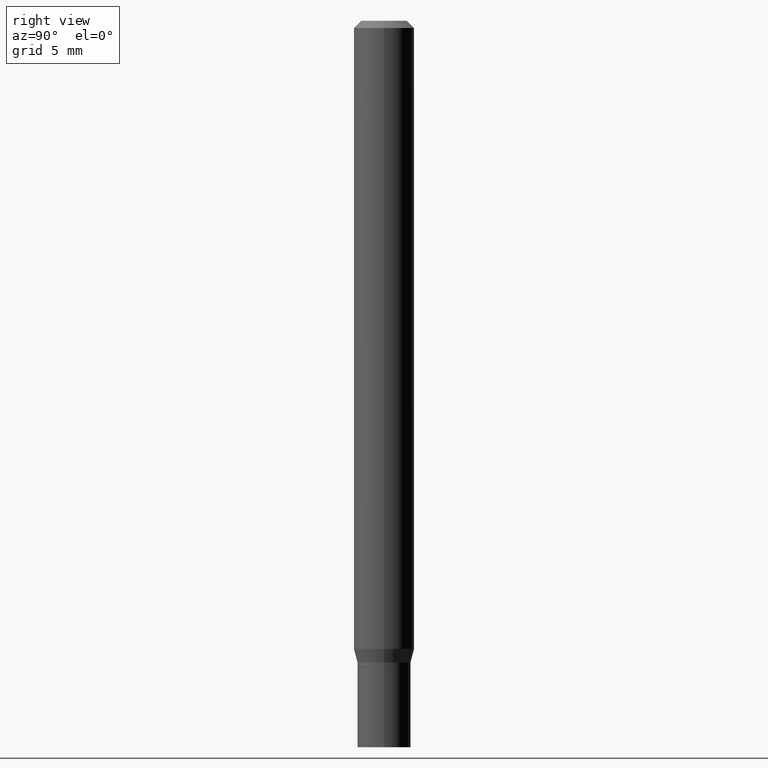
[diagram: clean part render]
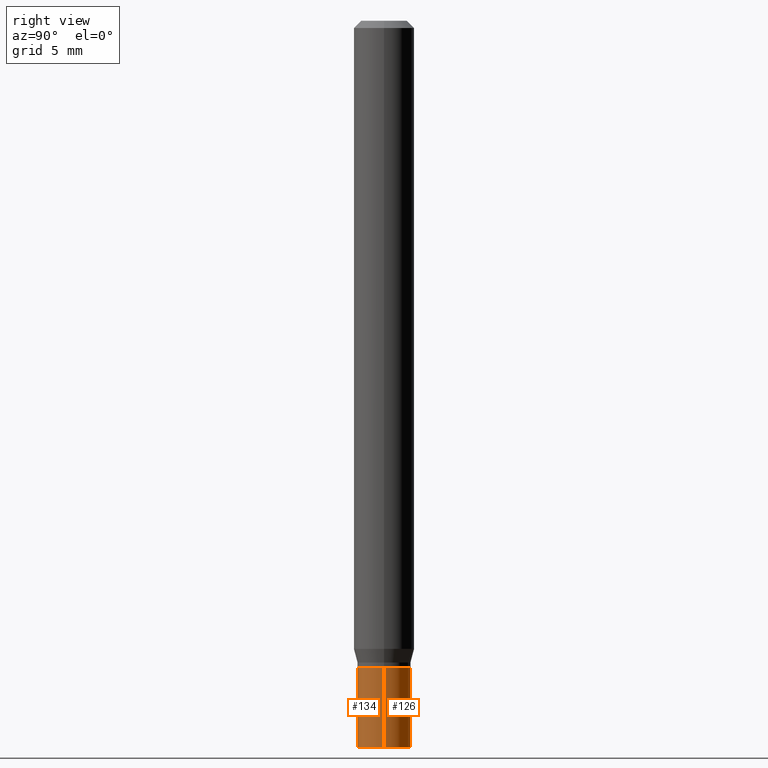
[diagram: same view with one multi-face feature highlighted, each face labeled with its STEP entity id]
A machine part, right view. The highlighted faces form ONE feature: a constant-radius fillet chain: 2 tangent blend faces with common blend radius 1.397 mm. The faces share edges in the B-rep.
Their STEP definitions:
[1] entity #134 (Cylinder):
#6 = VECTOR ( 'NONE', #228, 39.37007874015748143 ) ;
#30 = DIRECTION ( 'NONE',  ( -2.445468806185136877E-29, 3.491481338843145188E-15, 1.000000000000000000 ) ) ;
#48 = AXIS2_PLACEMENT_3D ( 'NONE', #456, #420, #454 ) ;
#53 = CARTESIAN_POINT ( 'NONE',  ( -0.05500000000000000028, -4.558376293142103594E-15, -1.335000000000000187 ) ) ;
#62 = CARTESIAN_POINT ( 'NONE',  ( 0.05500000000000000028, -3.840629472727446888E-16, 2.681897226687764826E-30 ) ) ;
#76 = LINE ( 'NONE', #62, #337 ) ;
#84 = CIRCLE ( 'NONE', #48, 0.05500000000000000028 ) ;
#111 = VERTEX_POINT ( 'NONE', #316 ) ;
#131 = DIRECTION ( 'NONE',  ( -2.445468806185136597E-29, 3.491481338843145583E-15, 1.000000000000000000 ) ) ;
#134 = ADVANCED_FACE ( 'NONE', ( #451 ), #449, .T. ) ;
#145 = DIRECTION ( 'NONE',  ( -2.445468806185136597E-29, 3.491481338843145583E-15, 1.000000000000000000 ) ) ;
#146 = VERTEX_POINT ( 'NONE', #318 ) ;
#151 = CARTESIAN_POINT ( 'NONE',  ( 3.668203209277704895E-29, -5.237222008264718177E-15, -1.500000000000000222 ) ) ;
#196 = VERTEX_POINT ( 'NONE', #53 ) ;
#217 = DIRECTION ( 'NONE',  ( 1.000000000000000000, -6.982962677686266711E-15, 4.876176775795935793E-29 ) ) ;
#228 = DIRECTION ( 'NONE',  ( -2.445468806185136877E-29, 3.491481338843145188E-15, 1.000000000000000000 ) ) ;
#240 = AXIS2_PLACEMENT_3D ( 'NONE', #151, #145, #366 ) ;
#250 = EDGE_CURVE ( 'NONE', #196, #111, #84, .T. ) ;
#259 = CIRCLE ( 'NONE', #240, 0.05500000000000000028 ) ;
#282 = ORIENTED_EDGE ( 'NONE', *, *, #339, .F. ) ;
#292 = ORIENTED_EDGE ( 'NONE', *, *, #250, .F. ) ;
#295 = LINE ( 'NONE', #394, #6 ) ;
#299 = VERTEX_POINT ( 'NONE', #402 ) ;
#302 = EDGE_CURVE ( 'NONE', #299, #146, #259, .T. ) ;
#316 = CARTESIAN_POINT ( 'NONE',  ( 0.05500000000000000028, -5.045190534628344107E-15, -1.335000000000000187 ) ) ;
#318 = CARTESIAN_POINT ( 'NONE',  ( 0.05500000000000000028, -5.621284955537463161E-15, -1.500000000000000222 ) ) ;
#337 = VECTOR ( 'NONE', #30, 39.37007874015748143 ) ;
#339 = EDGE_CURVE ( 'NONE', #299, #196, #295, .T. ) ;
#347 = CARTESIAN_POINT ( 'NONE',  ( 0.000000000000000000, 0.000000000000000000, 0.000000000000000000 ) ) ;
#351 = AXIS2_PLACEMENT_3D ( 'NONE', #347, #131, #217 ) ;
#363 = EDGE_LOOP ( 'NONE', ( #282, #452, #460, #292 ) ) ;
#366 = DIRECTION ( 'NONE',  ( 1.000000000000000000, -6.982962677686262766E-15, 0.000000000000000000 ) ) ;
#394 = CARTESIAN_POINT ( 'NONE',  ( -0.05500000000000000028, 3.907985046680551042E-16, -2.705414299640198362E-30 ) ) ;
#402 = CARTESIAN_POINT ( 'NONE',  ( -0.05500000000000000028, -4.558376293142103594E-15, -1.500000000000000222 ) ) ;
#410 = EDGE_CURVE ( 'NONE', #146, #111, #76, .T. ) ;
#420 = DIRECTION ( 'NONE',  ( -2.445468806185136597E-29, 3.491481338843145583E-15, 1.000000000000000000 ) ) ;
#449 = CYLINDRICAL_SURFACE ( 'NONE', #351, 0.05500000000000000028 ) ;
#451 = FACE_OUTER_BOUND ( 'NONE', #363, .T. ) ;
#452 = ORIENTED_EDGE ( 'NONE', *, *, #302, .T. ) ;
#454 = DIRECTION ( 'NONE',  ( 1.000000000000000000, -6.982962677686262766E-15, 0.000000000000000000 ) ) ;
#456 = CARTESIAN_POINT ( 'NONE',  ( 3.264700856257157760E-29, -4.661127587355599122E-15, -1.335000000000000187 ) ) ;
#460 = ORIENTED_EDGE ( 'NONE', *, *, #410, .T. ) ;
[2] entity #126 (Cylinder):
#6 = VECTOR ( 'NONE', #228, 39.37007874015748143 ) ;
#30 = DIRECTION ( 'NONE',  ( -2.445468806185136877E-29, 3.491481338843145188E-15, 1.000000000000000000 ) ) ;
#52 = DIRECTION ( 'NONE',  ( -2.445468806185136597E-29, 3.491481338843145583E-15, 1.000000000000000000 ) ) ;
#53 = CARTESIAN_POINT ( 'NONE',  ( -0.05500000000000000028, -4.558376293142103594E-15, -1.335000000000000187 ) ) ;
#62 = CARTESIAN_POINT ( 'NONE',  ( 0.05500000000000000028, -3.840629472727446888E-16, 2.681897226687764826E-30 ) ) ;
#76 = LINE ( 'NONE', #62, #337 ) ;
#111 = VERTEX_POINT ( 'NONE', #316 ) ;
#126 = ADVANCED_FACE ( 'NONE', ( #315 ), #215, .T. ) ;
#138 = AXIS2_PLACEMENT_3D ( 'NONE', #323, #325, #301 ) ;
#146 = VERTEX_POINT ( 'NONE', #318 ) ;
#150 = ORIENTED_EDGE ( 'NONE', *, *, #279, .F. ) ;
#171 = AXIS2_PLACEMENT_3D ( 'NONE', #210, #52, #350 ) ;
#196 = VERTEX_POINT ( 'NONE', #53 ) ;
#209 = DIRECTION ( 'NONE',  ( 1.000000000000000000, -6.982962677686262766E-15, 0.000000000000000000 ) ) ;
#210 = CARTESIAN_POINT ( 'NONE',  ( 0.000000000000000000, 0.000000000000000000, 0.000000000000000000 ) ) ;
#215 = CYLINDRICAL_SURFACE ( 'NONE', #171, 0.05500000000000000028 ) ;
#228 = DIRECTION ( 'NONE',  ( -2.445468806185136877E-29, 3.491481338843145188E-15, 1.000000000000000000 ) ) ;
#247 = CARTESIAN_POINT ( 'NONE',  ( 3.264700856257157760E-29, -4.661127587355599122E-15, -1.335000000000000187 ) ) ;
#279 = EDGE_CURVE ( 'NONE', #111, #196, #448, .T. ) ;
#281 = AXIS2_PLACEMENT_3D ( 'NONE', #247, #384, #209 ) ;
#295 = LINE ( 'NONE', #394, #6 ) ;
#299 = VERTEX_POINT ( 'NONE', #402 ) ;
#301 = DIRECTION ( 'NONE',  ( 1.000000000000000000, -6.982962677686262766E-15, 0.000000000000000000 ) ) ;
#304 = ORIENTED_EDGE ( 'NONE', *, *, #410, .F. ) ;
#315 = FACE_OUTER_BOUND ( 'NONE', #326, .T. ) ;
#316 = CARTESIAN_POINT ( 'NONE',  ( 0.05500000000000000028, -5.045190534628344107E-15, -1.335000000000000187 ) ) ;
#318 = CARTESIAN_POINT ( 'NONE',  ( 0.05500000000000000028, -5.621284955537463161E-15, -1.500000000000000222 ) ) ;
#323 = CARTESIAN_POINT ( 'NONE',  ( 3.668203209277704895E-29, -5.237222008264718177E-15, -1.500000000000000222 ) ) ;
#325 = DIRECTION ( 'NONE',  ( -2.445468806185136597E-29, 3.491481338843145583E-15, 1.000000000000000000 ) ) ;
#326 = EDGE_LOOP ( 'NONE', ( #429, #418, #150, #304 ) ) ;
#337 = VECTOR ( 'NONE', #30, 39.37007874015748143 ) ;
#339 = EDGE_CURVE ( 'NONE', #299, #196, #295, .T. ) ;
#344 = CIRCLE ( 'NONE', #138, 0.05500000000000000028 ) ;
#350 = DIRECTION ( 'NONE',  ( 1.000000000000000000, -6.982962677686266711E-15, 4.876176775795935793E-29 ) ) ;
#384 = DIRECTION ( 'NONE',  ( -2.445468806185136597E-29, 3.491481338843145583E-15, 1.000000000000000000 ) ) ;
#394 = CARTESIAN_POINT ( 'NONE',  ( -0.05500000000000000028, 3.907985046680551042E-16, -2.705414299640198362E-30 ) ) ;
#402 = CARTESIAN_POINT ( 'NONE',  ( -0.05500000000000000028, -4.558376293142103594E-15, -1.500000000000000222 ) ) ;
#406 = EDGE_CURVE ( 'NONE', #146, #299, #344, .T. ) ;
#410 = EDGE_CURVE ( 'NONE', #146, #111, #76, .T. ) ;
#418 = ORIENTED_EDGE ( 'NONE', *, *, #339, .T. ) ;
#429 = ORIENTED_EDGE ( 'NONE', *, *, #406, .T. ) ;
#448 = CIRCLE ( 'NONE', #281, 0.05500000000000000028 ) ;